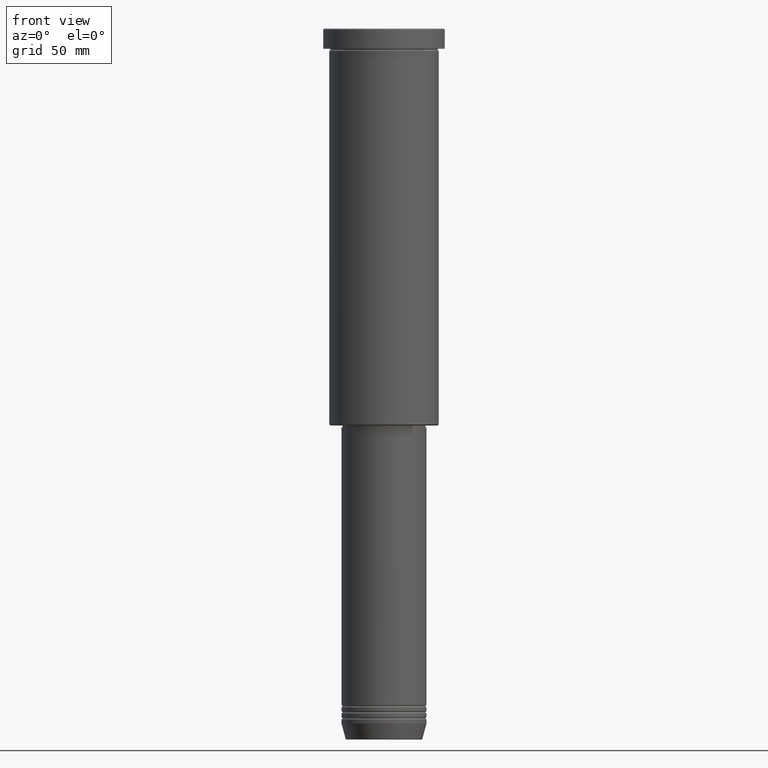
[diagram: clean part render]
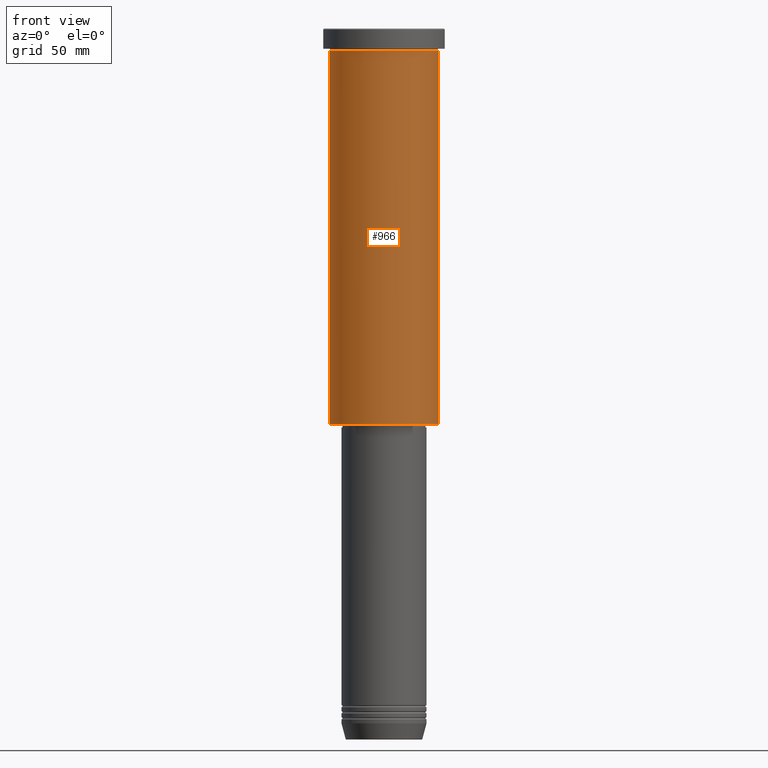
[diagram: same view with one face highlighted and labeled with its STEP entity id]
A machine part, front view. The second image highlights one B-rep face of the part: STEP entity #966.
In plain terms, the highlighted cylindrical surface (partial cylindrical patch) has radius 27 mm, axis along (-0, -0, 1).
Its self-contained STEP definition (entity closure, byte-faithful):
#26 = DIRECTION ( 'NONE',  ( -0.000000000000000000, -0.000000000000000000, 1.000000000000000000 ) ) ;
#66 = DIRECTION ( 'NONE',  ( -0.000000000000000000, -0.000000000000000000, 1.000000000000000000 ) ) ;
#94 = VECTOR ( 'NONE', #492, 1000.000000000000000 ) ;
#140 = VERTEX_POINT ( 'NONE', #1110 ) ;
#175 = DIRECTION ( 'NONE',  ( -0.000000000000000000, -0.000000000000000000, 1.000000000000000000 ) ) ;
#237 = EDGE_CURVE ( 'NONE', #529, #1079, #322, .T. ) ;
#251 = ORIENTED_EDGE ( 'NONE', *, *, #797, .T. ) ;
#275 = LINE ( 'NONE', #526, #449 ) ;
#322 = LINE ( 'NONE', #767, #94 ) ;
#406 = AXIS2_PLACEMENT_3D ( 'NONE', #1038, #26, #693 ) ;
#445 = CARTESIAN_POINT ( 'NONE',  ( -27.00000000000000355, 3.306546357697854128E-15, -195.5000000000000568 ) ) ;
#449 = VECTOR ( 'NONE', #175, 1000.000000000000000 ) ;
#470 = VERTEX_POINT ( 'NONE', #630 ) ;
#492 = DIRECTION ( 'NONE',  ( -0.000000000000000000, -0.000000000000000000, 1.000000000000000000 ) ) ;
#526 = CARTESIAN_POINT ( 'NONE',  ( 27.00000000000000355, 0.000000000000000000, 0.000000000000000000 ) ) ;
#529 = VERTEX_POINT ( 'NONE', #445 ) ;
#535 = CARTESIAN_POINT ( 'NONE',  ( 0.000000000000000000, 0.000000000000000000, 0.000000000000000000 ) ) ;
#589 = EDGE_LOOP ( 'NONE', ( #784, #251, #1094, #1133 ) ) ;
#599 = CIRCLE ( 'NONE', #873, 27.00000000000000355 ) ;
#630 = CARTESIAN_POINT ( 'NONE',  ( 27.00000000000000355, 0.000000000000000000, -195.5000000000000568 ) ) ;
#693 = DIRECTION ( 'NONE',  ( -1.000000000000000000, 0.000000000000000000, 0.000000000000000000 ) ) ;
#767 = CARTESIAN_POINT ( 'NONE',  ( -27.00000000000000355, 3.306546357697854128E-15, 0.000000000000000000 ) ) ;
#784 = ORIENTED_EDGE ( 'NONE', *, *, #237, .F. ) ;
#797 = EDGE_CURVE ( 'NONE', #529, #470, #833, .T. ) ;
#833 = CIRCLE ( 'NONE', #406, 27.00000000000000355 ) ;
#873 = AXIS2_PLACEMENT_3D ( 'NONE', #970, #66, #879 ) ;
#879 = DIRECTION ( 'NONE',  ( 1.000000000000000000, 0.000000000000000000, 0.000000000000000000 ) ) ;
#899 = DIRECTION ( 'NONE',  ( -0.000000000000000000, -0.000000000000000000, 1.000000000000000000 ) ) ;
#908 = EDGE_CURVE ( 'NONE', #470, #140, #275, .T. ) ;
#911 = EDGE_CURVE ( 'NONE', #1079, #140, #599, .T. ) ;
#966 = ADVANCED_FACE ( 'NONE', ( #1088 ), #1068, .T. ) ;
#970 = CARTESIAN_POINT ( 'NONE',  ( 0.000000000000000000, 0.000000000000000000, -10.99999999999999289 ) ) ;
#1038 = CARTESIAN_POINT ( 'NONE',  ( 0.000000000000000000, 0.000000000000000000, -195.5000000000000568 ) ) ;
#1068 = CYLINDRICAL_SURFACE ( 'NONE', #1143, 27.00000000000000355 ) ;
#1079 = VERTEX_POINT ( 'NONE', #1180 ) ;
#1088 = FACE_OUTER_BOUND ( 'NONE', #589, .T. ) ;
#1094 = ORIENTED_EDGE ( 'NONE', *, *, #908, .T. ) ;
#1110 = CARTESIAN_POINT ( 'NONE',  ( 27.00000000000000355, 0.000000000000000000, -10.99999999999999289 ) ) ;
#1133 = ORIENTED_EDGE ( 'NONE', *, *, #911, .F. ) ;
#1143 = AXIS2_PLACEMENT_3D ( 'NONE', #535, #899, #1155 ) ;
#1155 = DIRECTION ( 'NONE',  ( 1.000000000000000000, 0.000000000000000000, 0.000000000000000000 ) ) ;
#1180 = CARTESIAN_POINT ( 'NONE',  ( -27.00000000000000355, 3.306546357697854128E-15, -10.99999999999999289 ) ) ;